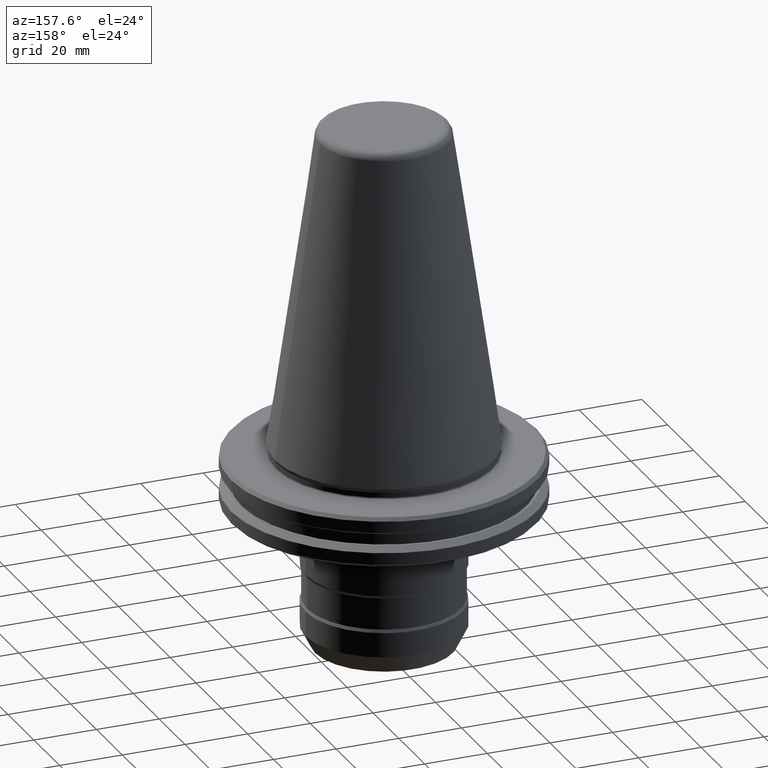
[diagram: clean part render]
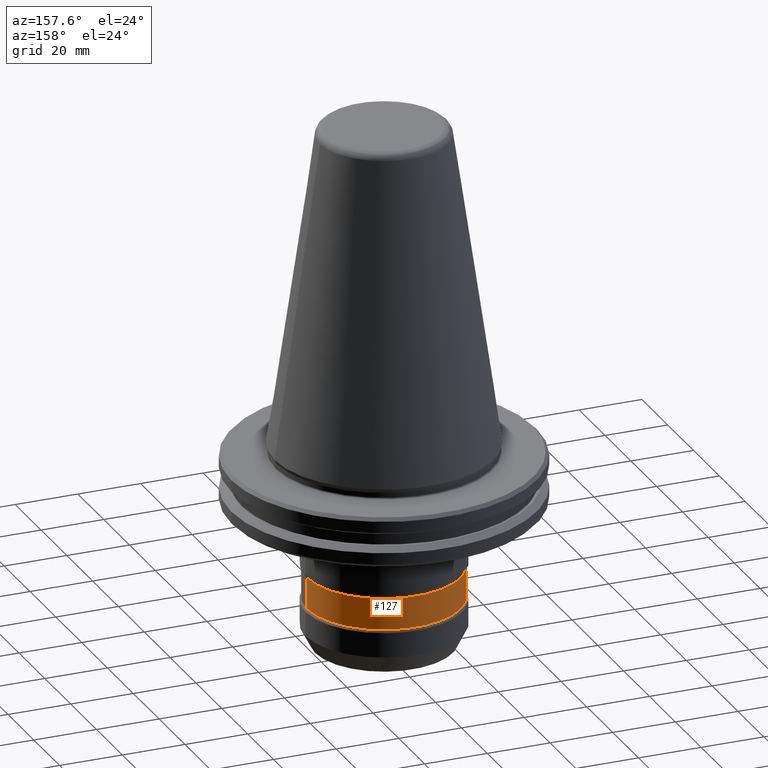
[diagram: same view with one face highlighted and labeled with its STEP entity id]
A machine part, auxiliary view. The second image highlights one B-rep face of the part: STEP entity #127.
In plain terms, the highlighted cylindrical surface (partial cylindrical patch) has radius 24.55 mm, axis along (-0, -0, 1).
Its self-contained STEP definition (entity closure, byte-faithful):
#28 = DIRECTION ( 'NONE',  ( -0.0000000000000000000, -0.0000000000000000000, 1.000000000000000000 ) ) ;
#38 = DIRECTION ( 'NONE',  ( 1.000000000000000000, 0.0000000000000000000, 0.0000000000000000000 ) ) ;
#39 = CARTESIAN_POINT ( 'NONE',  ( 24.54999999999994000, 0.0000000000000000000, 125.3933933958389100 ) ) ;
#68 = EDGE_CURVE ( 'NONE', #1102, #959, #543, .T. ) ;
#106 = DIRECTION ( 'NONE',  ( 1.000000000000000000, 0.0000000000000000000, 0.0000000000000000000 ) ) ;
#124 = CARTESIAN_POINT ( 'NONE',  ( 24.54999999999994000, 0.0000000000000000000, -39.79828231362181200 ) ) ;
#127 = ADVANCED_FACE ( 'NONE', ( #316 ), #282, .T. ) ;
#198 = VECTOR ( 'NONE', #448, 1000.000000000000000 ) ;
#240 = ORIENTED_EDGE ( 'NONE', *, *, #1099, .F. ) ;
#260 = LINE ( 'NONE', #39, #198 ) ;
#282 = CYLINDRICAL_SURFACE ( 'NONE', #1071, 24.54999999999994000 ) ;
#316 = FACE_OUTER_BOUND ( 'NONE', #1191, .T. ) ;
#418 = VERTEX_POINT ( 'NONE', #124 ) ;
#440 = DIRECTION ( 'NONE',  ( -0.0000000000000000000, -0.0000000000000000000, 1.000000000000000000 ) ) ;
#448 = DIRECTION ( 'NONE',  ( -0.0000000000000000000, -0.0000000000000000000, 1.000000000000000000 ) ) ;
#509 = CIRCLE ( 'NONE', #668, 24.54999999999994000 ) ;
#543 = CIRCLE ( 'NONE', #580, 24.54999999999994000 ) ;
#544 = ORIENTED_EDGE ( 'NONE', *, *, #880, .T. ) ;
#547 = ORIENTED_EDGE ( 'NONE', *, *, #886, .F. ) ;
#580 = AXIS2_PLACEMENT_3D ( 'NONE', #820, #28, #38 ) ;
#668 = AXIS2_PLACEMENT_3D ( 'NONE', #1227, #883, #1144 ) ;
#706 = ORIENTED_EDGE ( 'NONE', *, *, #68, .T. ) ;
#730 = VERTEX_POINT ( 'NONE', #787 ) ;
#764 = DIRECTION ( 'NONE',  ( -0.0000000000000000000, -0.0000000000000000000, 1.000000000000000000 ) ) ;
#787 = CARTESIAN_POINT ( 'NONE',  ( -24.54999999999994000, 3.006507891906744700E-015, -39.79828231362181200 ) ) ;
#820 = CARTESIAN_POINT ( 'NONE',  ( 0.0000000000000000000, 0.0000000000000000000, -49.80171768636520800 ) ) ;
#880 = EDGE_CURVE ( 'NONE', #959, #730, #993, .T. ) ;
#883 = DIRECTION ( 'NONE',  ( -0.0000000000000000000, -0.0000000000000000000, 1.000000000000000000 ) ) ;
#886 = EDGE_CURVE ( 'NONE', #418, #730, #509, .T. ) ;
#959 = VERTEX_POINT ( 'NONE', #1138 ) ;
#993 = LINE ( 'NONE', #1065, #1106 ) ;
#1013 = CARTESIAN_POINT ( 'NONE',  ( 24.54999999999994000, 3.034062444887563800E-015, -49.80171768636520800 ) ) ;
#1065 = CARTESIAN_POINT ( 'NONE',  ( -24.54999999999994000, 3.006507891906744700E-015, 125.3933933958389100 ) ) ;
#1071 = AXIS2_PLACEMENT_3D ( 'NONE', #1196, #764, #106 ) ;
#1099 = EDGE_CURVE ( 'NONE', #1102, #418, #260, .T. ) ;
#1102 = VERTEX_POINT ( 'NONE', #1013 ) ;
#1106 = VECTOR ( 'NONE', #440, 1000.000000000000000 ) ;
#1138 = CARTESIAN_POINT ( 'NONE',  ( -24.54999999999994000, 0.0000000000000000000, -49.80171768636520800 ) ) ;
#1144 = DIRECTION ( 'NONE',  ( 1.000000000000000000, 0.0000000000000000000, 0.0000000000000000000 ) ) ;
#1191 = EDGE_LOOP ( 'NONE', ( #706, #544, #547, #240 ) ) ;
#1196 = CARTESIAN_POINT ( 'NONE',  ( 0.0000000000000000000, 0.0000000000000000000, 125.3933933958389100 ) ) ;
#1227 = CARTESIAN_POINT ( 'NONE',  ( 0.0000000000000000000, 0.0000000000000000000, -39.79828231362181200 ) ) ;